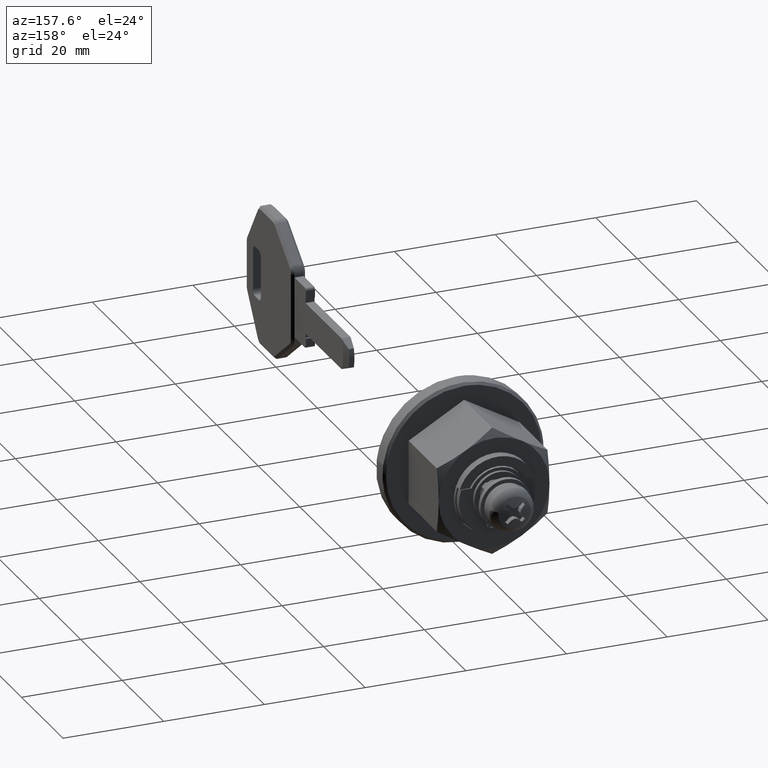
[diagram: clean part render]
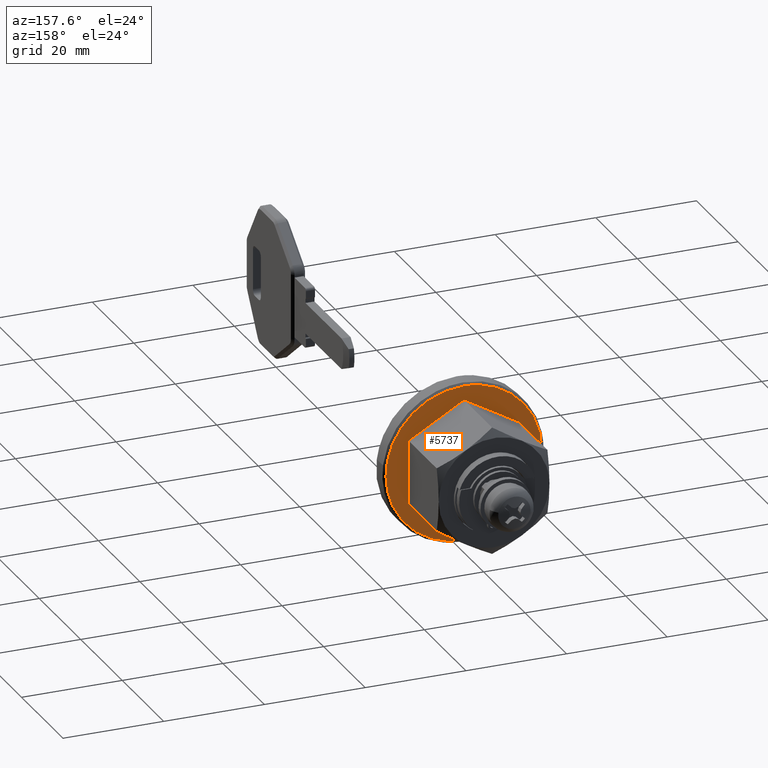
[diagram: same view with one face highlighted and labeled with its STEP entity id]
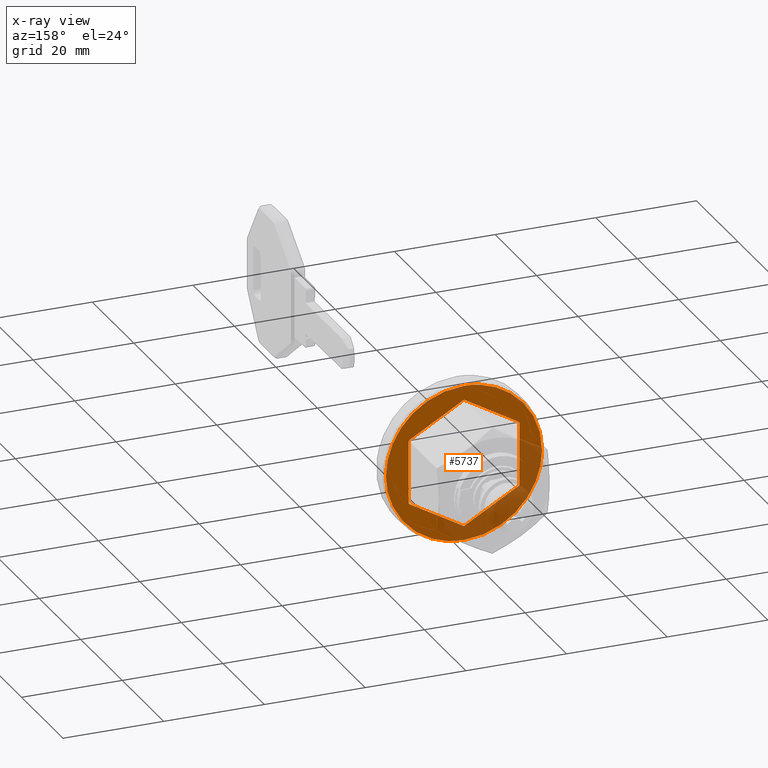
[diagram: x-ray of the same camera — body ghosted, the highlighted face saturated]
A machine part, auxiliary view. The second image highlights one B-rep face of the part: STEP entity #5737.
The next image is the same camera in x-ray: the body ghosted, the highlighted face saturated — about 33% of this face is hidden behind the body in this view.
In plain terms, the highlighted face is a freeform B-spline surface patch.
Its self-contained STEP definition (entity closure, byte-faithful):
#4549=CARTESIAN_POINT('',(10.599999999987901,-14.177289048371970,-6.265339195906440));
#4550=VERTEX_POINT('',#4549);
#4556=CARTESIAN_POINT('',(10.599999999991001,0.0,15.499999999939799));
#4557=VERTEX_POINT('',#4556);
#4558=CARTESIAN_POINT('',(10.599999999991001,0.0,15.499999999939799));
#4559=CARTESIAN_POINT('',(10.599999999990999,-15.500000000000004,15.499999999939799));
#4560=CARTESIAN_POINT('',(10.599999999991001,-15.500000000000000,-6.019718E-011));
#4561=CARTESIAN_POINT('',(10.599999999990999,-15.499999999999998,-3.272292067502002));
#4562=CARTESIAN_POINT('',(10.599999999987901,-14.177289048371962,-6.265339195906440));
#4570=(BOUNDED_CURVE()B_SPLINE_CURVE(2,(#4558,#4559,#4560,#4561,#4562),.UNSPECIFIED.,.F.,.U.)B_SPLINE_CURVE_WITH_KNOTS((3,2,3),(0.0,0.250000000000000,0.318638421540792),.UNSPECIFIED.)CURVE()GEOMETRIC_REPRESENTATION_ITEM()RATIONAL_B_SPLINE_CURVE((1.0,0.707106781186548,1.0,0.919585087122571,0.883326595751118))REPRESENTATION_ITEM(''));
#4571=EDGE_CURVE('',#4557,#4550,#4570,.T.);
#4573=CARTESIAN_POINT('',(10.599999999979550,15.499409807505341,-0.135261300368728));
#4574=VERTEX_POINT('',#4573);
#4575=CARTESIAN_POINT('',(10.599999999979548,15.499409807505346,-0.135261300368728));
#4576=CARTESIAN_POINT('',(10.599999999990997,15.500000000000004,-0.067631937864711));
#4577=CARTESIAN_POINT('',(10.599999999991001,15.500000000000000,-6.019718E-011));
#4578=CARTESIAN_POINT('',(10.599999999990999,15.500000000000004,15.499999999939799));
#4579=CARTESIAN_POINT('',(10.599999999991001,0.0,15.499999999939799));
#4587=(BOUNDED_CURVE()B_SPLINE_CURVE(2,(#4575,#4576,#4577,#4578,#4579),.UNSPECIFIED.,.F.,.U.)B_SPLINE_CURVE_WITH_KNOTS((3,2,3),(0.748460105663112,0.750000000000000,1.0),.UNSPECIFIED.)CURVE()GEOMETRIC_REPRESENTATION_ITEM()RATIONAL_B_SPLINE_CURVE((0.996414028096006,0.998195901564145,1.0,0.707106781186548,1.0))REPRESENTATION_ITEM(''));
#4588=EDGE_CURVE('',#4574,#4557,#4587,.T.);
#4677=CARTESIAN_POINT('',(10.599999999991001,0.0,-15.500000000060201));
#4678=VERTEX_POINT('',#4677);
#4679=CARTESIAN_POINT('',(10.599999999991001,0.0,-15.500000000060201));
#4680=CARTESIAN_POINT('',(10.599999999990999,15.365323764056235,-15.500000000060192));
#4681=CARTESIAN_POINT('',(10.599999999979545,15.499409807505346,-0.135261300368728));
#4689=(BOUNDED_CURVE()B_SPLINE_CURVE(2,(#4679,#4680,#4681),.UNSPECIFIED.,.F.,.U.)B_SPLINE_CURVE_WITH_KNOTS((3,3),(0.500000000000000,0.748460105663111),.UNSPECIFIED.)CURVE()GEOMETRIC_REPRESENTATION_ITEM()RATIONAL_B_SPLINE_CURVE((1.0,0.708910879622404,0.996414028096004))REPRESENTATION_ITEM(''));
#4690=EDGE_CURVE('',#4678,#4574,#4689,.T.);
#4692=CARTESIAN_POINT('',(10.599999999987901,-14.177289048371962,-6.265339195906440));
#4693=CARTESIAN_POINT('',(10.599999999991001,-10.096235040118902,-15.500000000060194));
#4694=CARTESIAN_POINT('',(10.599999999991001,0.0,-15.500000000060201));
#4702=(BOUNDED_CURVE()B_SPLINE_CURVE(2,(#4692,#4693,#4694),.UNSPECIFIED.,.F.,.U.)B_SPLINE_CURVE_WITH_KNOTS((3,3),(0.318638421540792,0.500000000000000),.UNSPECIFIED.)CURVE()GEOMETRIC_REPRESENTATION_ITEM()RATIONAL_B_SPLINE_CURVE((0.883326595751118,0.787521694063977,1.0))REPRESENTATION_ITEM(''));
#4703=EDGE_CURVE('',#4550,#4678,#4702,.T.);
#5586=CARTESIAN_POINT('',(10.599999999991001,-11.0,6.350852961025710));
#5587=VERTEX_POINT('',#5586);
#5593=CARTESIAN_POINT('',(10.599999999991059,-11.000000000000160,-6.350852961145991));
#5594=VERTEX_POINT('',#5593);
#5595=CARTESIAN_POINT('',(10.599999999991059,-11.000000000000160,-6.350852961145991));
#5596=CARTESIAN_POINT('',(10.599999999991001,-11.0,6.350852961025710));
#5597=QUASI_UNIFORM_CURVE('',1,(#5595,#5596),.UNSPECIFIED.,.F.,.U.);
#5598=EDGE_CURVE('',#5594,#5587,#5597,.T.);
#5616=CARTESIAN_POINT('',(10.599999999991001,-8.673617E-016,-12.701705922232000));
#5617=VERTEX_POINT('',#5616);
#5618=CARTESIAN_POINT('',(10.599999999991001,-8.673617E-016,-12.701705922232000));
#5619=CARTESIAN_POINT('',(10.599999999991059,-11.000000000000160,-6.350852961145991));
#5620=QUASI_UNIFORM_CURVE('',1,(#5618,#5619),.UNSPECIFIED.,.F.,.U.);
#5621=EDGE_CURVE('',#5617,#5594,#5620,.T.);
#5639=CARTESIAN_POINT('',(10.599999999991001,11.0,-6.350852961146051));
#5640=VERTEX_POINT('',#5639);
#5641=CARTESIAN_POINT('',(10.599999999991001,11.0,-6.350852961146051));
#5642=CARTESIAN_POINT('',(10.599999999991001,-8.673617E-016,-12.701705922232000));
#5643=QUASI_UNIFORM_CURVE('',1,(#5641,#5642),.UNSPECIFIED.,.F.,.U.);
#5644=EDGE_CURVE('',#5640,#5617,#5643,.T.);
#5662=CARTESIAN_POINT('',(10.599999999991001,11.0,6.350852961025400));
#5663=VERTEX_POINT('',#5662);
#5664=CARTESIAN_POINT('',(10.599999999991001,11.0,6.350852961025400));
#5665=CARTESIAN_POINT('',(10.599999999991001,11.0,-6.350852961146051));
#5666=QUASI_UNIFORM_CURVE('',1,(#5664,#5665),.UNSPECIFIED.,.F.,.U.);
#5667=EDGE_CURVE('',#5663,#5640,#5666,.T.);
#5685=CARTESIAN_POINT('',(10.599999999991001,-1.708703E-013,12.701705922111600));
#5686=VERTEX_POINT('',#5685);
#5687=CARTESIAN_POINT('',(10.599999999991001,-1.708703E-013,12.701705922111600));
#5688=CARTESIAN_POINT('',(10.599999999991001,11.0,6.350852961025400));
#5689=QUASI_UNIFORM_CURVE('',1,(#5687,#5688),.UNSPECIFIED.,.F.,.U.);
#5690=EDGE_CURVE('',#5686,#5663,#5689,.T.);
#5708=CARTESIAN_POINT('',(10.599999999991001,-11.0,6.350852961025710));
#5709=CARTESIAN_POINT('',(10.599999999991001,-1.708703E-013,12.701705922111600));
#5710=QUASI_UNIFORM_CURVE('',1,(#5708,#5709),.UNSPECIFIED.,.F.,.U.);
#5711=EDGE_CURVE('',#5587,#5686,#5710,.T.);
#5718=CARTESIAN_POINT('',(10.599999999991001,-17.045563855528581,17.048449939855789));
#5719=CARTESIAN_POINT('',(10.599999999991001,17.047693288087590,17.048449939855789));
#5720=CARTESIAN_POINT('',(10.599999999991001,-17.045563855528581,-17.048450771460981));
#5721=CARTESIAN_POINT('',(10.599999999991001,17.047693288087590,-17.048450771460981));
#5722=B_SPLINE_SURFACE_WITH_KNOTS('',1,1,((#5718,#5720),(#5719,#5721)),.UNSPECIFIED.,.F.,.F.,.U.,(2,2),(2,2),(0.0,34.093257143616157),(0.0,34.096900711316771),.UNSPECIFIED.);
#5723=ORIENTED_EDGE('',*,*,#4571,.T.);
#5724=ORIENTED_EDGE('',*,*,#4703,.T.);
#5725=ORIENTED_EDGE('',*,*,#4690,.T.);
#5726=ORIENTED_EDGE('',*,*,#4588,.T.);
#5727=EDGE_LOOP('',(#5723,#5724,#5725,#5726));
#5728=FACE_OUTER_BOUND('',#5727,.T.);
#5729=ORIENTED_EDGE('',*,*,#5711,.T.);
#5730=ORIENTED_EDGE('',*,*,#5690,.T.);
#5731=ORIENTED_EDGE('',*,*,#5667,.T.);
#5732=ORIENTED_EDGE('',*,*,#5644,.T.);
#5733=ORIENTED_EDGE('',*,*,#5621,.T.);
#5734=ORIENTED_EDGE('',*,*,#5598,.T.);
#5735=EDGE_LOOP('',(#5729,#5730,#5731,#5732,#5733,#5734));
#5736=FACE_BOUND('',#5735,.T.);
#5737=ADVANCED_FACE('',(#5728,#5736),#5722,.F.);